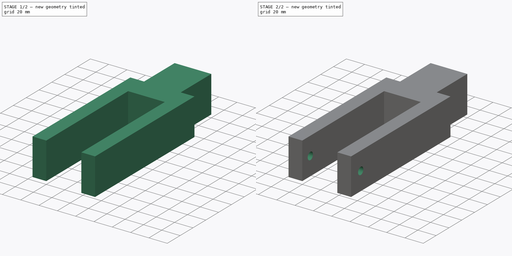
[diagram: build sequence overview — one tinted view per stage of 2, left to right]
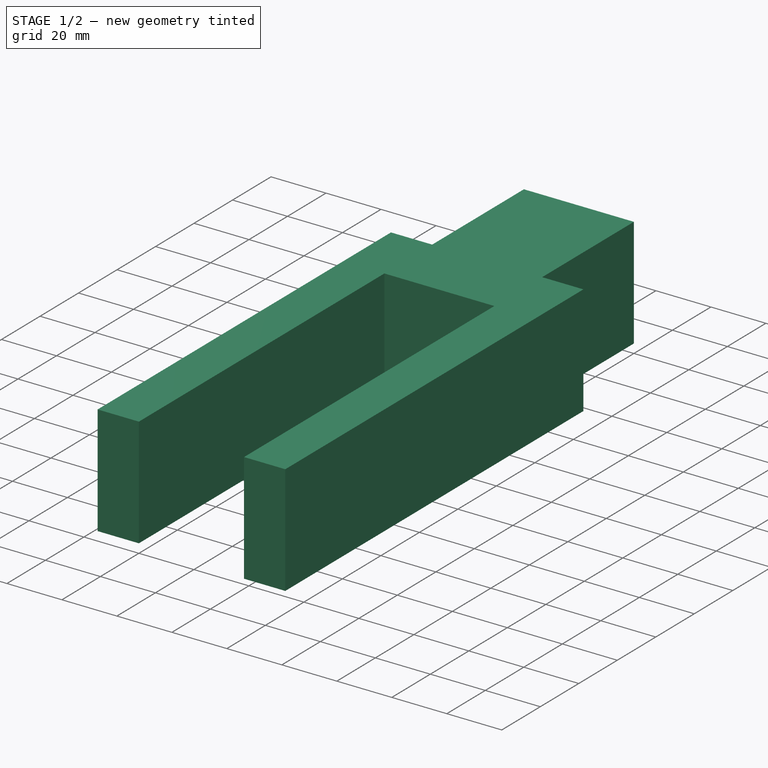
[diagram: stage 1 of 2 — iso view after this stage's code; geometry added in this stage tinted green]
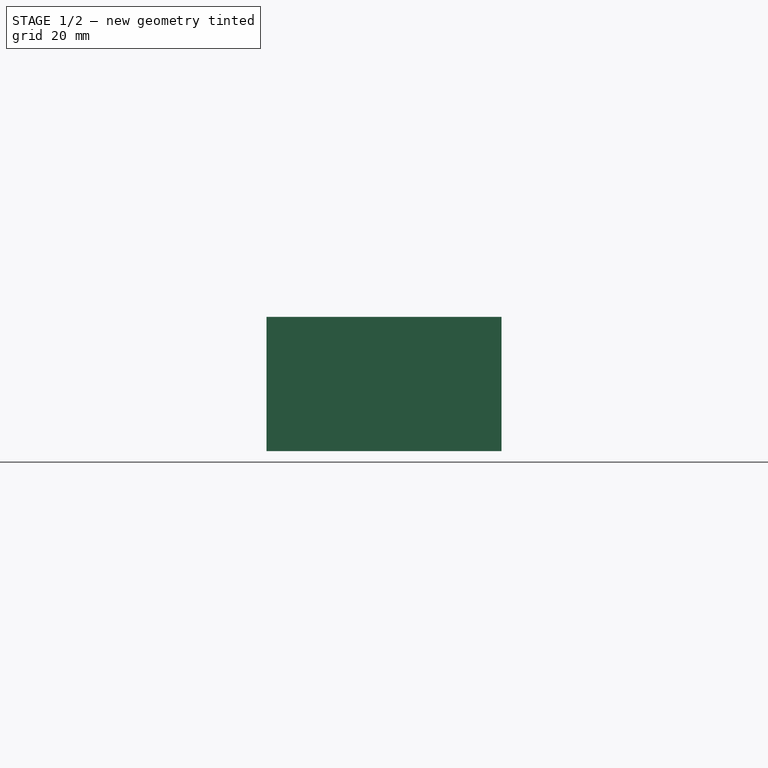
[diagram: stage 1 of 2 — front view after this stage's code; geometry added in this stage tinted green]
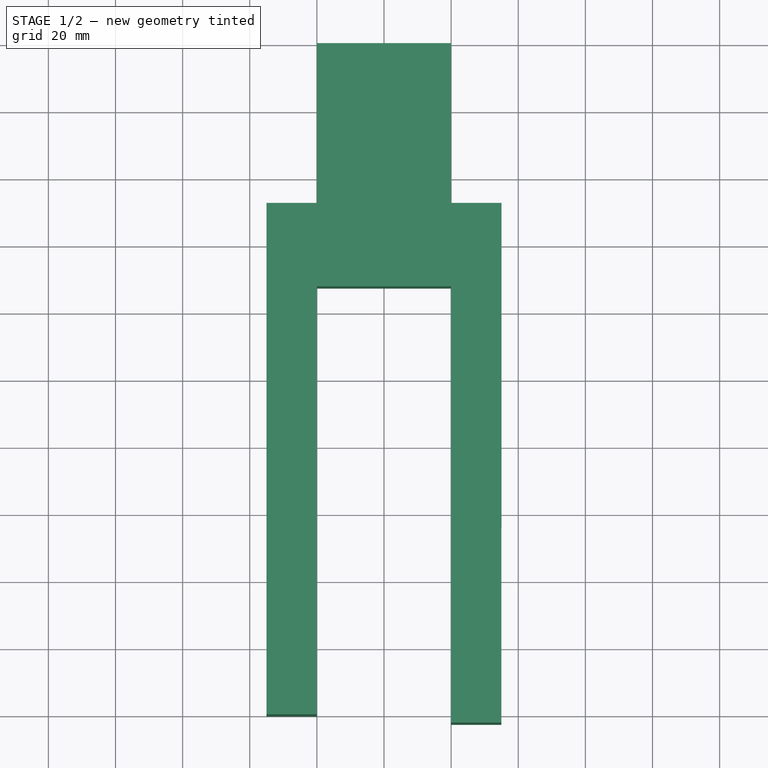
[diagram: stage 1 of 2 — top view after this stage's code; geometry added in this stage tinted green]
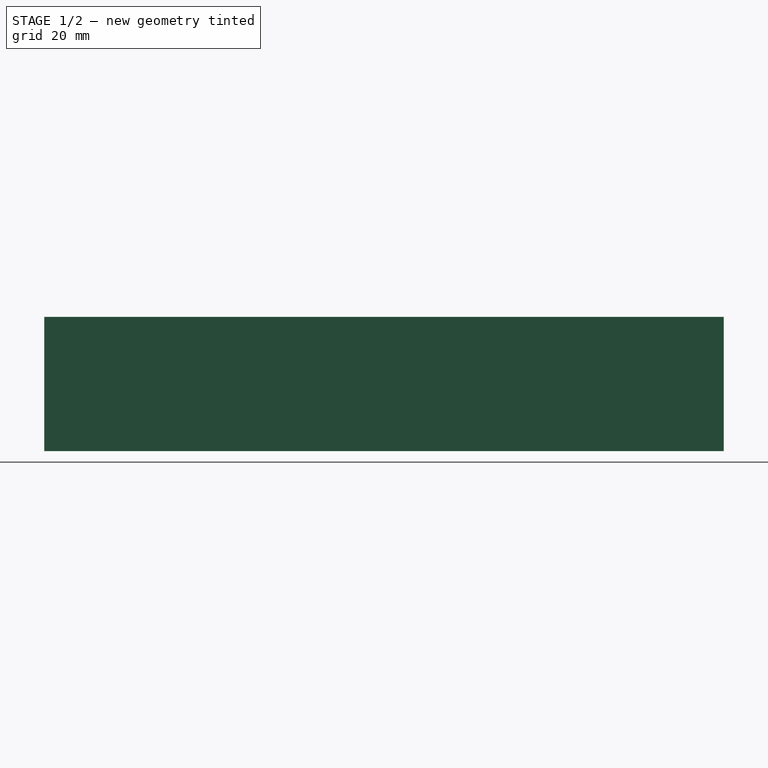
[diagram: stage 1 of 2 — right view after this stage's code; geometry added in this stage tinted green]
FCSTD DOCUMENT  (FreeCAD 1.1R20260325 (Git shallow))
Label: 100mm_wheel_support
License: All rights reserved
LicenseURL: https://en.wikipedia.org/wiki/All_rights_reserved
objects: Sketcher::SketchObject×2, App::Point×1, PartDesign::Pad×1, PartDesign::Pocket×1, PartDesign::Body×1
note: 11 computed .brp shape members not serialized (recipe doc carries the construction recipe); baked Part::Feature solids carry a one-line shape summary decoded from their .brp

FEATURE [App::Point] Origin001
  Role = Origin
FEATURE [Sketcher::SketchObject] Sketch
  ArcFitTolerance = 1e-06
  AttachmentSupport = -> [Origin]
  ExternalTypes = [0]
  FullyConstrained = false
  MakeInternals = false
  MapMode = 5
  _ExternalGeoVersion = 1
  sketch-geometry (18):
    g0: LineSegment [constr] StartX=0 StartY=0 StartZ=0 EndX=0 EndY=200 EndZ=0
    g1: LineSegment StartX=-35 StartY=0 StartZ=0 EndX=-35 EndY=110 EndZ=0
    g2: LineSegment StartX=-35 StartY=0 StartZ=0 EndX=-20 EndY=0 EndZ=0
    g3: LineSegment StartX=-20 StartY=0 StartZ=0 EndX=-20 EndY=127.527 EndZ=0
    g4: LineSegment StartX=-20 StartY=127.527 StartZ=0 EndX=0 EndY=127.527 EndZ=0
    g5: LineSegment StartX=-35 StartY=152.374 StartZ=0 EndX=-35 EndY=110 EndZ=0
    g6: LineSegment StartX=-35 StartY=152.374 StartZ=0 EndX=-20 EndY=152.374 EndZ=0
    g7: LineSegment StartX=-20 StartY=152.374 StartZ=0 EndX=-20 EndY=200 EndZ=0
    g8: LineSegment StartX=0 StartY=200 StartZ=0 EndX=-20 EndY=200 EndZ=0
    g9: LineSegment StartX=34.9829 StartY=-2.47305 StartZ=0 EndX=35.0001 EndY=107.527 EndZ=0
    g10: LineSegment StartX=34.9829 StartY=-2.47305 StartZ=0 EndX=19.9829 EndY=-2.47305 EndZ=0
    g11: LineSegment StartX=19.9829 StartY=-2.47305 StartZ=0 EndX=20.0009 EndY=127.527 EndZ=0
    g12: LineSegment StartX=20.0009 StartY=127.527 StartZ=0 EndX=0 EndY=127.527 EndZ=0
    g13: LineSegment StartX=35.0017 StartY=152.374 StartZ=0 EndX=35.0001 EndY=107.527 EndZ=0
    g14: LineSegment StartX=35.0017 StartY=152.374 StartZ=0 EndX=20.0017 EndY=152.374 EndZ=0
    g15: LineSegment StartX=20.0017 StartY=152.374 StartZ=0 EndX=20.0017 EndY=200 EndZ=0
    g16: LineSegment StartX=0 StartY=200 StartZ=0 EndX=20.0017 EndY=200 EndZ=0
    g17: LineSegment [constr] StartX=-20 StartY=127.527 StartZ=0 EndX=-35 EndY=127.527 EndZ=0
  constraints (46):
    c: Distance(g0) = 200
    c: Coincident(g0,g-1)
    c: PointOnObject(g0,g-2)
    c: Distance(g1) = 110
    c: PointOnObject(g1,g-1)
    c: Vertical(g1)
    c: DistanceX(g1,g0) = 35
    c: Distance(g2) = 15
    c: Coincident(g2,g1)
    c: PointOnObject(g2,g-1)
    c: Coincident(g3,g2)
    c: Vertical(g3)
    c: Coincident(g4,g3)
    c: PointOnObject(g4,g0)
    c: Horizontal(g4)
    c: Coincident(g5,g1)
    c: Distance(g6) = 15
    c: Coincident(g6,g5)
    c: Horizontal(g6)
    c: Coincident(g7,g6)
    c: Vertical(g7)
    c: Horizontal(g7,g0)
    c: Coincident(g8,g0)
    c: Coincident(g8,g7)
    c: Distance(g9) = 110
    c: Distance(g10) = 15
    c: Coincident(g10,g9)
    c: Distance(g11) = 130
    c: Coincident(g11,g10)
    c: Coincident(g12,g11)
    c: Coincident(g13,g9)
    c: Distance(g14) = 15
    c: Coincident(g14,g13)
    c: Coincident(g15,g14)
    c: Coincident(g16,g15)
    c: Horizontal(g7,g15)
    c: Coincident(g16,g0)
    c: Horizontal(g6,g14)
    c: Horizontal(g14)
    c: Vertical(g5)
    c: Coincident(g4,g12)
    c: Horizontal(g12)
    c: Horizontal(g10)
    c: Coincident(g17,g3)
    c: PointOnObject(g17,g5)
    c: Horizontal(g17)
FEATURE [PartDesign::Pad] Pad
  Direction = (0,0,1)
  Length = 40
  Length2 = 10
  Profile = -> Sketch
  ReferenceAxis = -> Sketch [N_Axis]
  Refine = true
  SideType = 0
  Suppressed = false
  Type = 0
  Type2 = 0
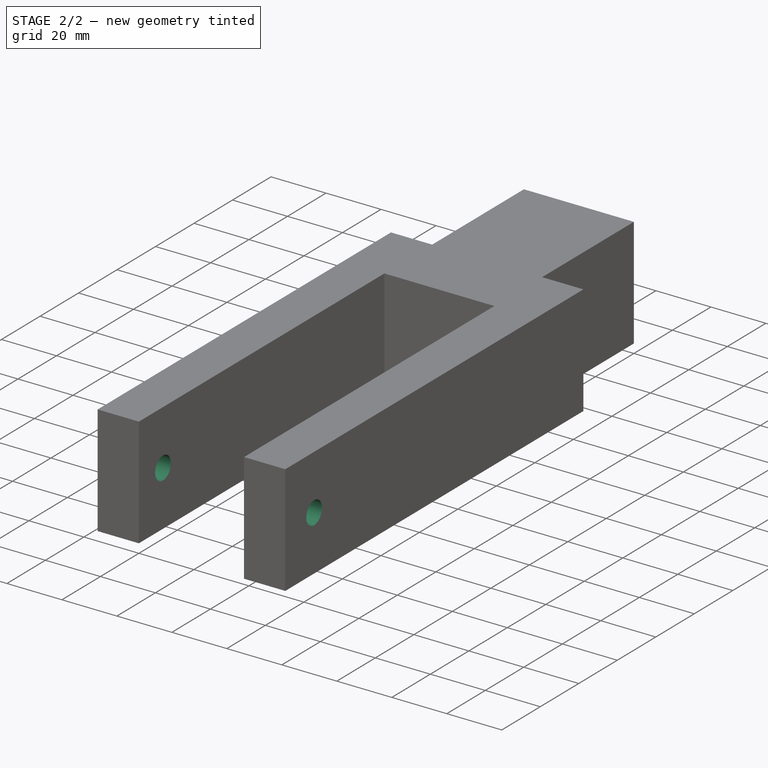
[diagram: stage 2 of 2 — iso view after this stage's code; geometry added in this stage tinted green]
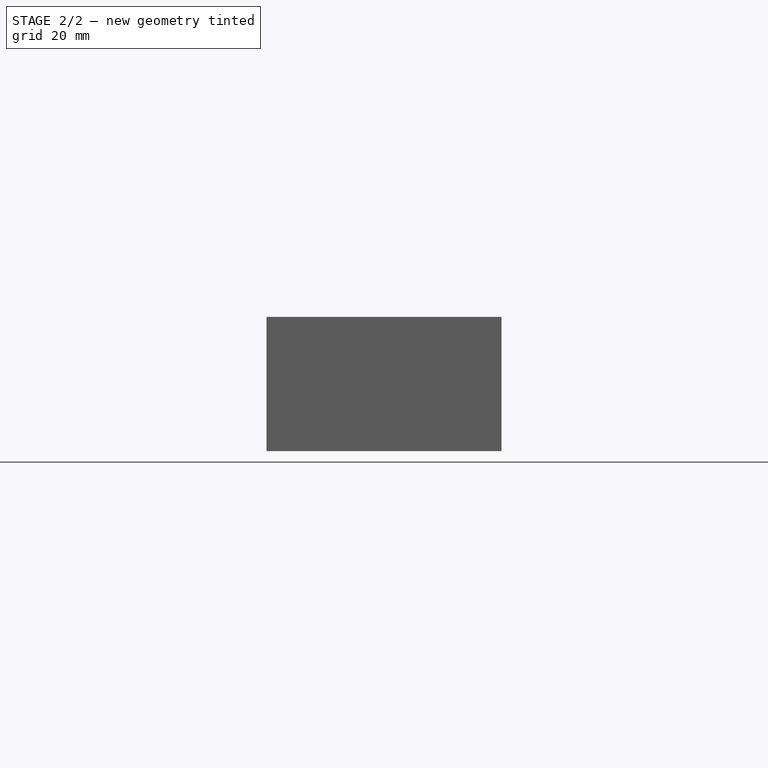
[diagram: stage 2 of 2 — front view after this stage's code; geometry added in this stage tinted green]
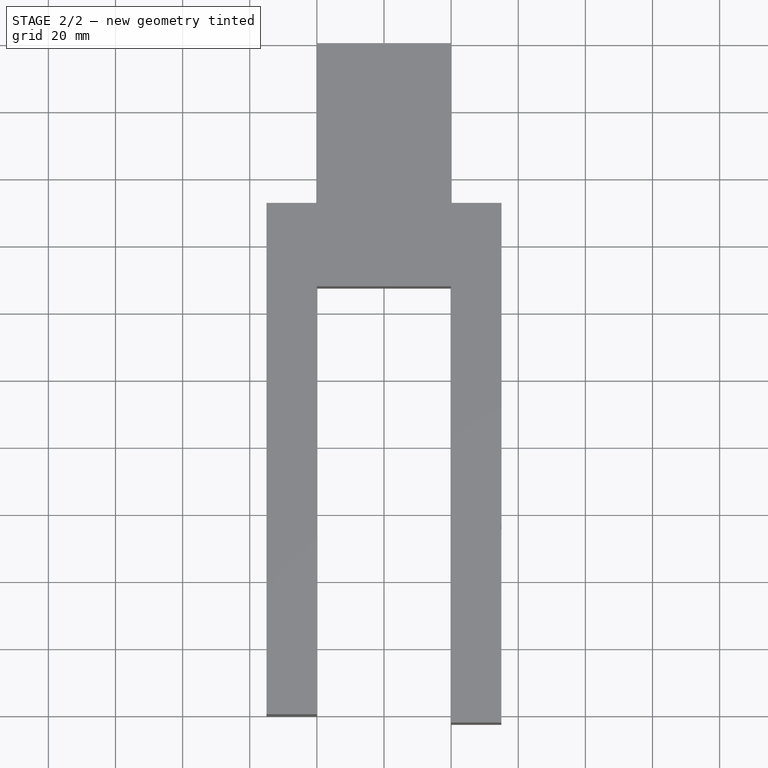
[diagram: stage 2 of 2 — top view after this stage's code; geometry added in this stage tinted green]
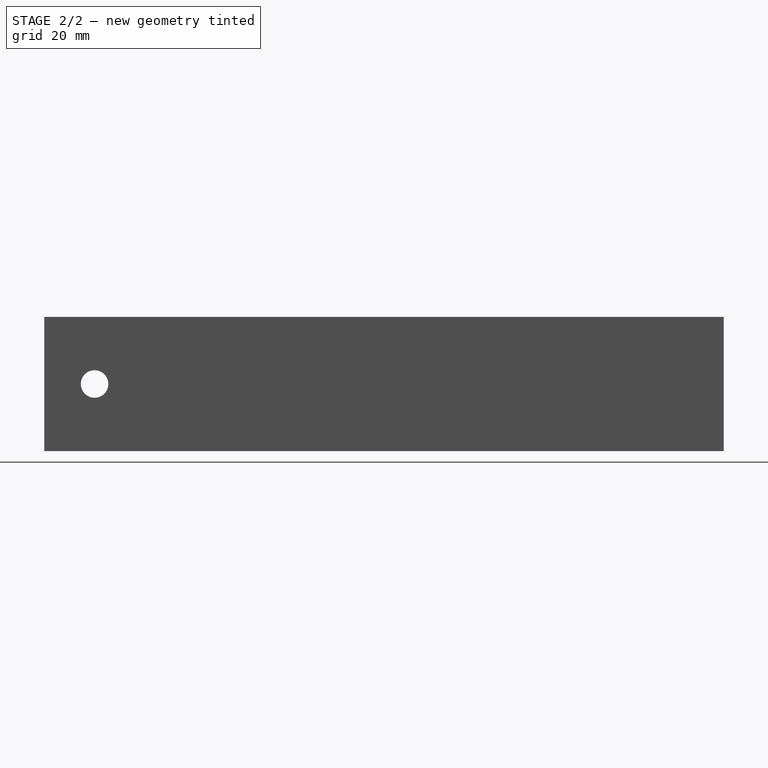
[diagram: stage 2 of 2 — right view after this stage's code; geometry added in this stage tinted green]
FEATURE [Sketcher::SketchObject] Sketch001
  ArcFitTolerance = 1e-06
  AttachmentSupport = -> [Pad]
  ExternalGeometry = -> [Pad]
  ExternalTypes = [0]
  FullyConstrained = true
  MakeInternals = false
  MapMode = 5
  Placement = pos=(34.9833,-0.00546928,0) rot=(0.57741,0.57732,0.57732;2.0943rad)
  _ExternalGeoVersion = 1
  sketch-geometry (2):
    g0: LineSegment [constr] StartX=-2.46758 StartY=20 StartZ=0 EndX=12.5324 EndY=20 EndZ=0
    g1: Circle CenterX=12.5324 CenterY=20 CenterZ=0 NormalX=0 NormalY=0 NormalZ=1 AngleXU=0 Radius=4.1
  constraints (5):
    c: Distance(g0) = 15
    c: Symmetric(g-3,g-3,g0)
    c: Horizontal(g0)
    c: Diameter(g1) = 8.2
    c: Coincident(g1,g0)
FEATURE [PartDesign::Pocket] Pocket
  BaseFeature = -> Pad
  Direction = (-1,0,0)
  Length = 5
  Length2 = 5
  Profile = -> Sketch001 [Edge1]
  ReferenceAxis = -> Sketch001 [N_Axis]
  Refine = true
  SideType = 0
  Suppressed = false
  Type = 1
  Type2 = 0
FEATURE [PartDesign::Body] Body
  AllowCompound = true
  Group = -> [Sketch,Pad,Sketch001,Pocket]
  Origin = -> Origin
  Tip = -> Pocket
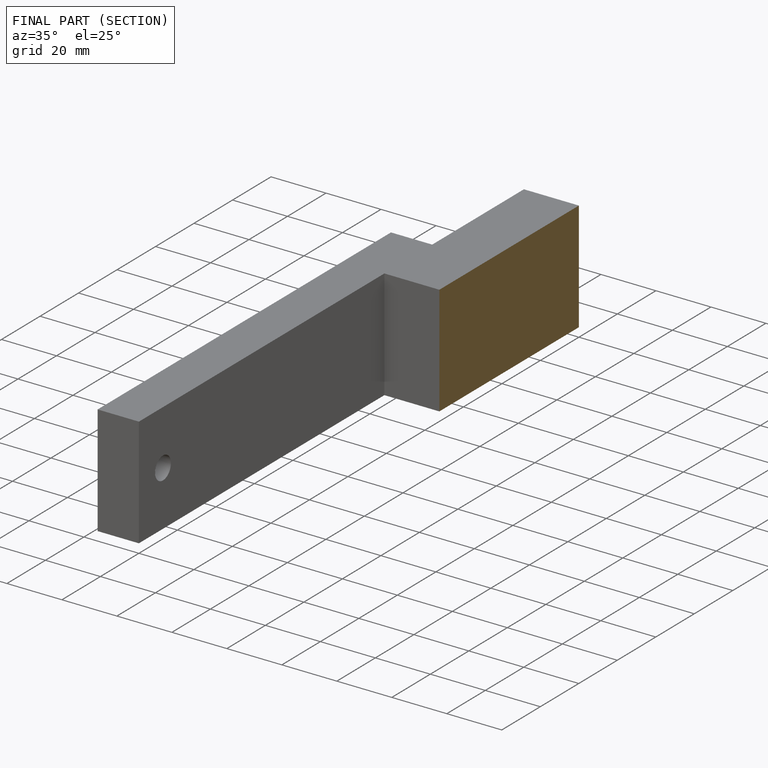
[diagram: finished part — half-section view (interior)]
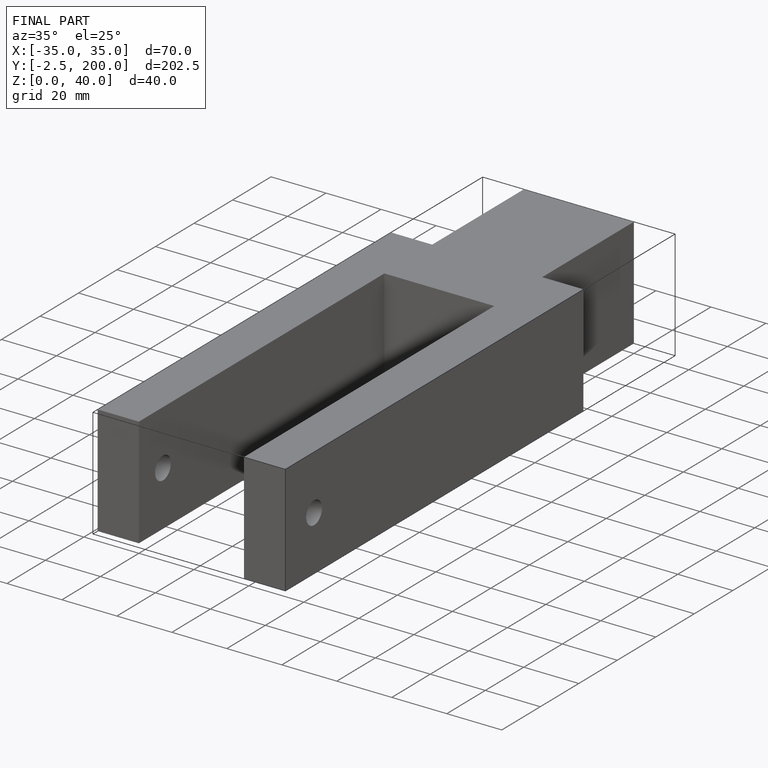
[diagram: finished part — iso view with bounding-box wireframe]
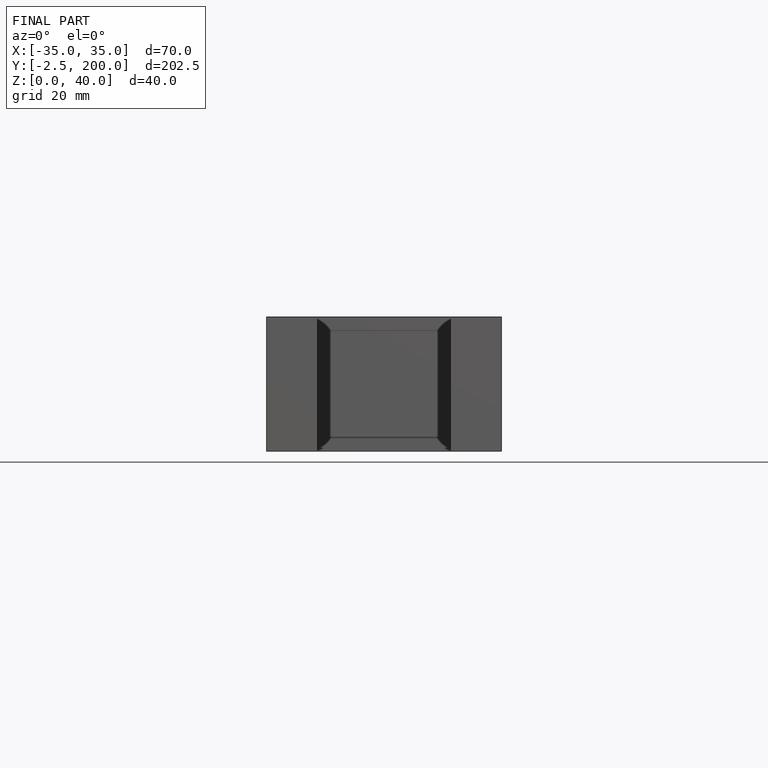
[diagram: finished part — front view with bounding-box wireframe]
